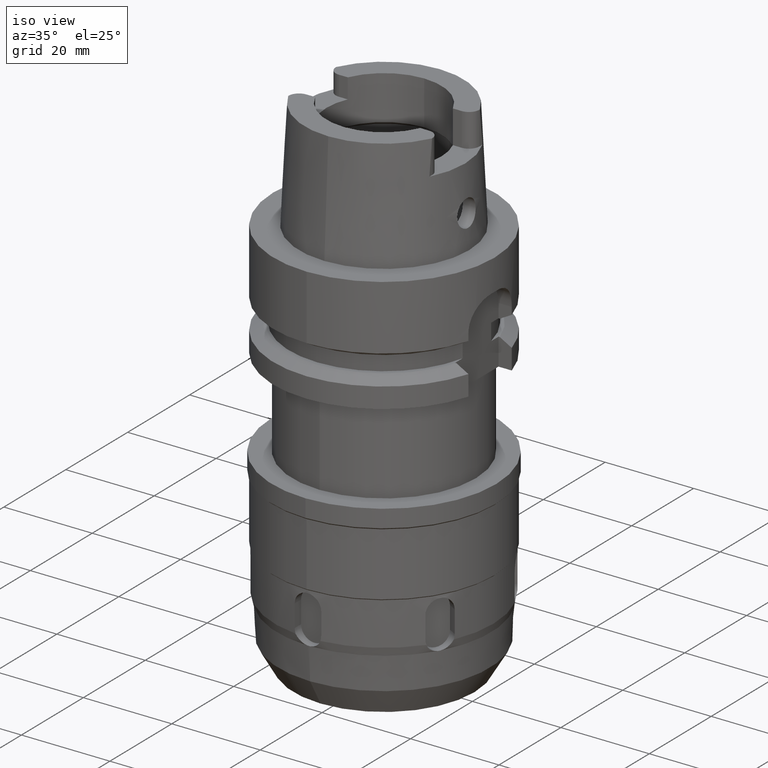
[diagram: clean part render]
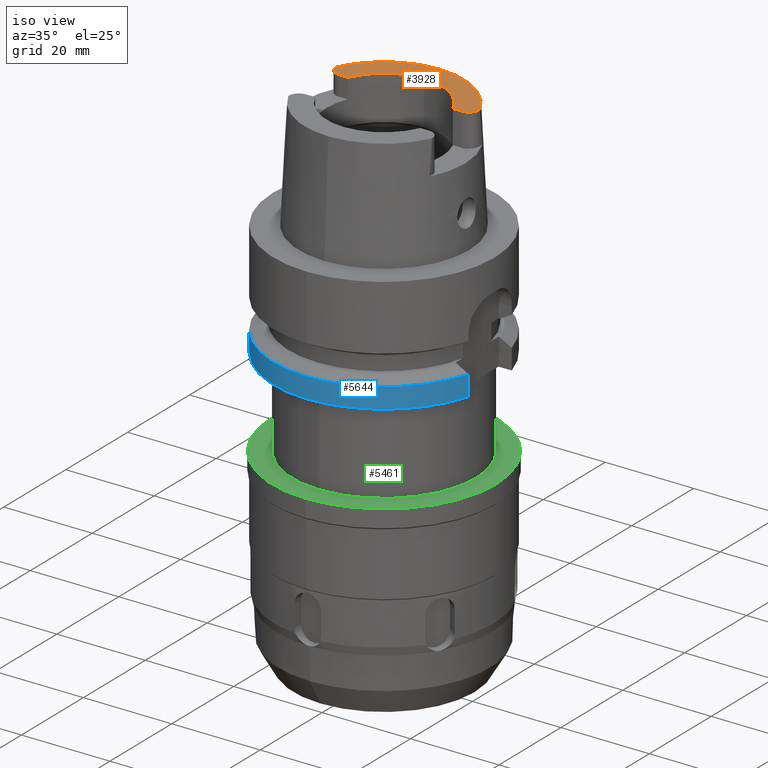
[diagram: same view with three faces highlighted in distinct colors, each labeled with its STEP entity id]
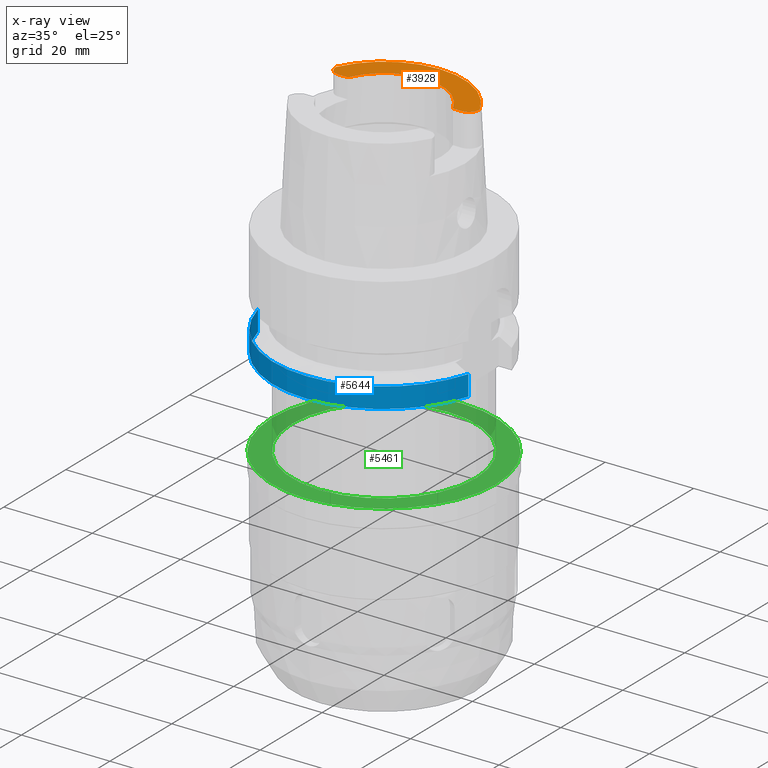
[diagram: x-ray of the same camera — body ghosted, the three highlighted faces saturated]
A machine part, iso view with three faces highlighted in distinct colors.
The next image is the same camera in x-ray (body ghosted, the three faces saturated) — at least one of them is partly hidden behind the body in this view.
Their STEP definitions:

[orange] entity #3928 — the highlighted planar face has unit normal (0, 0, 1).
#17=CARTESIAN_POINT('',(-1.388E1,7.65E0,2.5E1));
#18=DIRECTION('',(0.E0,0.E0,-1.E0));
#19=DIRECTION('',(0.E0,-1.E0,0.E0));
#20=AXIS2_PLACEMENT_3D('',#17,#18,#19);
#26=CARTESIAN_POINT('',(0.E0,0.E0,2.5E1));
#27=DIRECTION('',(0.E0,0.E0,-1.E0));
#28=DIRECTION('',(-9.033332415537E-1,4.289394534245E-1,0.E0));
#29=AXIS2_PLACEMENT_3D('',#26,#27,#28);
#34=CARTESIAN_POINT('',(0.E0,0.E0,2.5E1));
#35=DIRECTION('',(0.E0,0.E0,-1.E0));
#36=DIRECTION('',(0.E0,1.E0,0.E0));
#37=AXIS2_PLACEMENT_3D('',#34,#35,#36);
#42=CARTESIAN_POINT('',(1.388E1,7.65E0,2.5E1));
#43=DIRECTION('',(0.E0,0.E0,-1.E0));
#44=DIRECTION('',(1.E0,0.E0,0.E0));
#45=AXIS2_PLACEMENT_3D('',#42,#43,#44);
#50=CARTESIAN_POINT('',(0.E0,0.E0,2.5E1));
#51=DIRECTION('',(0.E0,0.E0,1.E0));
#52=DIRECTION('',(9.141462211318E-1,4.053846153846E-1,0.E0));
#53=AXIS2_PLACEMENT_3D('',#50,#51,#52);
#58=CARTESIAN_POINT('',(0.E0,0.E0,2.5E1));
#59=DIRECTION('',(0.E0,0.E0,1.E0));
#60=DIRECTION('',(0.E0,1.E0,0.E0));
#61=AXIS2_PLACEMENT_3D('',#58,#59,#60);
#66=DIRECTION('',(1.E0,1.744231717311E-13,0.E0));
#67=VECTOR('',#66,1.996099125288E0);
#68=CARTESIAN_POINT('',(-1.388E1,5.27E0,2.5E1));
#69=LINE('',#68,#67);
#3348=DIRECTION('',(1.E0,-1.744231717311E-13,0.E0));
#3349=VECTOR('',#3348,1.996099125288E0);
#3350=CARTESIAN_POINT('',(1.188390087471E1,5.27E0,2.5E1));
#3351=LINE('',#3350,#3349);
#3369=DIRECTION('',(-1.870226228980E-4,9.999999825113E-1,5.005708433585E-13));
#3370=VECTOR('',#3369,7.097324436566E-2);
#3371=CARTESIAN_POINT('',(1.626E1,7.65E0,2.5E1));
#3372=LINE('',#3371,#3370);
#3376=DIRECTION('',(1.209350921537E-5,-9.999999999269E-1,-5.010390525481E-13));
#3377=VECTOR('',#3376,7.090692154100E-2);
#3378=CARTESIAN_POINT('',(-1.626000085751E1,7.720906921536E0,2.5E1));
#3379=LINE('',#3378,#3377);
#3411=CARTESIAN_POINT('',(-1.388E1,5.27E0,2.5E1));
#3412=CARTESIAN_POINT('',(-1.188390087471E1,5.27E0,2.5E1));
#3413=VERTEX_POINT('',#3411);
#3414=VERTEX_POINT('',#3412);
#3415=CARTESIAN_POINT('',(-1.626E1,7.65E0,2.5E1));
#3416=VERTEX_POINT('',#3415);
#3417=CARTESIAN_POINT('',(-1.626000085751E1,7.720906921536E0,2.5E1));
#3418=VERTEX_POINT('',#3417);
#3419=CARTESIAN_POINT('',(0.E0,1.800000182882E1,2.5E1));
#3420=VERTEX_POINT('',#3419);
#3421=CARTESIAN_POINT('',(1.626E1,7.720910946094E0,2.5E1));
#3422=VERTEX_POINT('',#3421);
#3423=CARTESIAN_POINT('',(1.626E1,7.65E0,2.5E1));
#3424=VERTEX_POINT('',#3423);
#3425=CARTESIAN_POINT('',(1.388E1,5.27E0,2.5E1));
#3426=VERTEX_POINT('',#3425);
#3427=CARTESIAN_POINT('',(1.188390087471E1,5.27E0,2.5E1));
#3428=VERTEX_POINT('',#3427);
#3429=CARTESIAN_POINT('',(0.E0,1.3E1,2.5E1));
#3430=VERTEX_POINT('',#3429);
#3901=CARTESIAN_POINT('',(0.E0,0.E0,2.5E1));
#3902=DIRECTION('',(0.E0,0.E0,1.E0));
#3903=DIRECTION('',(0.E0,1.E0,0.E0));
#3904=AXIS2_PLACEMENT_3D('',#3901,#3902,#3903);
#3905=PLANE('',#3904);
#3907=ORIENTED_EDGE('',*,*,#3906,.F.);
#3909=ORIENTED_EDGE('',*,*,#3908,.T.);
#3911=ORIENTED_EDGE('',*,*,#3910,.F.);
#3913=ORIENTED_EDGE('',*,*,#3912,.T.);
#3915=ORIENTED_EDGE('',*,*,#3914,.T.);
#3917=ORIENTED_EDGE('',*,*,#3916,.F.);
#3919=ORIENTED_EDGE('',*,*,#3918,.T.);
#3921=ORIENTED_EDGE('',*,*,#3920,.F.);
#3923=ORIENTED_EDGE('',*,*,#3922,.T.);
#3925=ORIENTED_EDGE('',*,*,#3924,.T.);
#3926=EDGE_LOOP('',(#3907,#3909,#3911,#3913,#3915,#3917,#3919,#3921,#3923,
#3925));
#3927=FACE_OUTER_BOUND('',#3926,.F.);
#21=CIRCLE('',#20,2.38E0);
#30=CIRCLE('',#29,1.800000182882E1);
#38=CIRCLE('',#37,1.800000182882E1);
#46=CIRCLE('',#45,2.38E0);
#54=CIRCLE('',#53,1.3E1);
#62=CIRCLE('',#61,1.3E1);
#3906=EDGE_CURVE('',#3413,#3414,#69,.T.);
#3908=EDGE_CURVE('',#3413,#3416,#21,.T.);
#3910=EDGE_CURVE('',#3418,#3416,#3379,.T.);
#3912=EDGE_CURVE('',#3418,#3420,#30,.T.);
#3914=EDGE_CURVE('',#3420,#3422,#38,.T.);
#3916=EDGE_CURVE('',#3424,#3422,#3372,.T.);
#3918=EDGE_CURVE('',#3424,#3426,#46,.T.);
#3920=EDGE_CURVE('',#3428,#3426,#3351,.T.);
#3922=EDGE_CURVE('',#3428,#3430,#54,.T.);
#3924=EDGE_CURVE('',#3430,#3414,#62,.T.);
#3928=ADVANCED_FACE('',(#3927),#3905,.T.);

[blue] entity #5644 — the highlighted cylindrical surface (partial cylindrical patch) has radius 25 mm, axis along (0, 0, 1).
#2350=CARTESIAN_POINT('',(0.E0,0.E0,-2.6E1));
#2351=DIRECTION('',(0.E0,0.E0,1.E0));
#2352=DIRECTION('',(-9.707728879609E-1,-2.4E-1,0.E0));
#2353=AXIS2_PLACEMENT_3D('',#2350,#2351,#2352);
#2358=CARTESIAN_POINT('',(0.E0,0.E0,-2.6E1));
#2359=DIRECTION('',(0.E0,0.E0,1.E0));
#2360=DIRECTION('',(0.E0,-1.E0,0.E0));
#2361=AXIS2_PLACEMENT_3D('',#2358,#2359,#2360);
#2532=DIRECTION('',(3.541965322344E-8,-1.432688107513E-7,1.E0));
#2533=VECTOR('',#2532,4.622494564470E0);
#2534=CARTESIAN_POINT('',(-2.426932219902E1,-6.E0,-2.6E1));
#2535=LINE('',#2534,#2533);
#2539=DIRECTION('',(-1.373991167339E-8,-4.710796654676E-8,-1.E0));
#2540=VECTOR('',#2539,4.622502716596E0);
#2541=CARTESIAN_POINT('',(2.400000006351E1,-6.999999782243E0,
-2.137749728340E1));
#2542=LINE('',#2541,#2540);
#3284=CARTESIAN_POINT('',(0.E0,0.E0,-2.137749907476E1));
#3285=DIRECTION('',(0.E0,0.E0,-1.E0));
#3286=DIRECTION('',(9.6E-1,-2.8E-1,0.E0));
#3287=AXIS2_PLACEMENT_3D('',#3284,#3285,#3286);
#3292=CARTESIAN_POINT('',(0.E0,0.E0,-2.137749907476E1));
#3293=DIRECTION('',(0.E0,0.E0,-1.E0));
#3294=DIRECTION('',(0.E0,-1.E0,0.E0));
#3295=AXIS2_PLACEMENT_3D('',#3292,#3293,#3294);
#3736=CARTESIAN_POINT('',(-2.426932219902E1,-6.E0,-2.6E1));
#3737=VERTEX_POINT('',#3736);
#3738=CARTESIAN_POINT('',(0.E0,-2.5E1,-2.6E1));
#3739=CARTESIAN_POINT('',(2.4E1,-7.E0,-2.6E1));
#3740=VERTEX_POINT('',#3738);
#3741=VERTEX_POINT('',#3739);
#3764=CARTESIAN_POINT('',(-2.426932203529E1,-6.000000662260E0,
-2.137750543553E1));
#3765=VERTEX_POINT('',#3764);
#3766=CARTESIAN_POINT('',(2.4E1,-7.E0,-2.137749907476E1));
#3767=CARTESIAN_POINT('',(0.E0,-2.5E1,-2.137749907476E1));
#3768=VERTEX_POINT('',#3766);
#3769=VERTEX_POINT('',#3767);
#5628=CARTESIAN_POINT('',(0.E0,0.E0,-9.575E1));
#5629=DIRECTION('',(0.E0,0.E0,1.E0));
#5630=DIRECTION('',(0.E0,1.E0,0.E0));
#5631=AXIS2_PLACEMENT_3D('',#5628,#5629,#5630);
#5632=CYLINDRICAL_SURFACE('',#5631,2.5E1);
#5634=ORIENTED_EDGE('',*,*,#5633,.T.);
#5636=ORIENTED_EDGE('',*,*,#5635,.F.);
#5638=ORIENTED_EDGE('',*,*,#5637,.F.);
#5639=ORIENTED_EDGE('',*,*,#5618,.T.);
#5640=ORIENTED_EDGE('',*,*,#5509,.F.);
#5641=ORIENTED_EDGE('',*,*,#5507,.F.);
#5642=EDGE_LOOP('',(#5634,#5636,#5638,#5639,#5640,#5641));
#5643=FACE_OUTER_BOUND('',#5642,.F.);
#2354=CIRCLE('',#2353,2.5E1);
#2362=CIRCLE('',#2361,2.5E1);
#3288=CIRCLE('',#3287,2.5E1);
#3296=CIRCLE('',#3295,2.5E1);
#5507=EDGE_CURVE('',#3737,#3740,#2354,.T.);
#5509=EDGE_CURVE('',#3740,#3741,#2362,.T.);
#5618=EDGE_CURVE('',#3768,#3741,#2542,.T.);
#5633=EDGE_CURVE('',#3737,#3765,#2535,.T.);
#5635=EDGE_CURVE('',#3769,#3765,#3296,.T.);
#5637=EDGE_CURVE('',#3768,#3769,#3288,.T.);
#5644=ADVANCED_FACE('',(#5643),#5632,.T.);

[green] entity #5461 — the highlighted planar face has unit normal (0, 0, 1).
#2275=CARTESIAN_POINT('',(0.E0,0.E0,-4.62E1));
#2276=DIRECTION('',(0.E0,0.E0,-1.E0));
#2277=DIRECTION('',(0.E0,-1.E0,0.E0));
#2278=AXIS2_PLACEMENT_3D('',#2275,#2276,#2277);
#2283=CARTESIAN_POINT('',(0.E0,0.E0,-4.62E1));
#2284=DIRECTION('',(0.E0,0.E0,-1.E0));
#2285=DIRECTION('',(0.E0,1.E0,0.E0));
#2286=AXIS2_PLACEMENT_3D('',#2283,#2284,#2285);
#2291=CARTESIAN_POINT('',(0.E0,0.E0,-4.62E1));
#2292=DIRECTION('',(0.E0,0.E0,1.E0));
#2293=DIRECTION('',(0.E0,-1.E0,0.E0));
#2294=AXIS2_PLACEMENT_3D('',#2291,#2292,#2293);
#2299=CARTESIAN_POINT('',(0.E0,0.E0,-4.62E1));
#2300=DIRECTION('',(0.E0,0.E0,1.E0));
#2301=DIRECTION('',(0.E0,1.E0,0.E0));
#2302=AXIS2_PLACEMENT_3D('',#2299,#2300,#2301);
#3712=CARTESIAN_POINT('',(0.E0,2.535E1,-4.62E1));
#3713=VERTEX_POINT('',#3712);
#3714=CARTESIAN_POINT('',(0.E0,-2.535E1,-4.62E1));
#3715=VERTEX_POINT('',#3714);
#3716=CARTESIAN_POINT('',(0.E0,-2.08E1,-4.62E1));
#3717=CARTESIAN_POINT('',(0.E0,2.08E1,-4.62E1));
#3718=VERTEX_POINT('',#3716);
#3719=VERTEX_POINT('',#3717);
#5446=CARTESIAN_POINT('',(0.E0,0.E0,-4.62E1));
#5447=DIRECTION('',(0.E0,0.E0,1.E0));
#5448=DIRECTION('',(0.E0,1.E0,0.E0));
#5449=AXIS2_PLACEMENT_3D('',#5446,#5447,#5448);
#5450=PLANE('',#5449);
#5451=ORIENTED_EDGE('',*,*,#5439,.T.);
#5452=ORIENTED_EDGE('',*,*,#5428,.T.);
#5453=EDGE_LOOP('',(#5451,#5452));
#5454=FACE_OUTER_BOUND('',#5453,.F.);
#5456=ORIENTED_EDGE('',*,*,#5455,.T.);
#5458=ORIENTED_EDGE('',*,*,#5457,.T.);
#5459=EDGE_LOOP('',(#5456,#5458));
#5460=FACE_BOUND('',#5459,.F.);
#2279=CIRCLE('',#2278,2.535E1);
#2287=CIRCLE('',#2286,2.535E1);
#2295=CIRCLE('',#2294,2.08E1);
#2303=CIRCLE('',#2302,2.08E1);
#5428=EDGE_CURVE('',#3713,#3715,#2287,.T.);
#5439=EDGE_CURVE('',#3715,#3713,#2279,.T.);
#5455=EDGE_CURVE('',#3718,#3719,#2295,.T.);
#5457=EDGE_CURVE('',#3719,#3718,#2303,.T.);
#5461=ADVANCED_FACE('',(#5454,#5460),#5450,.T.);